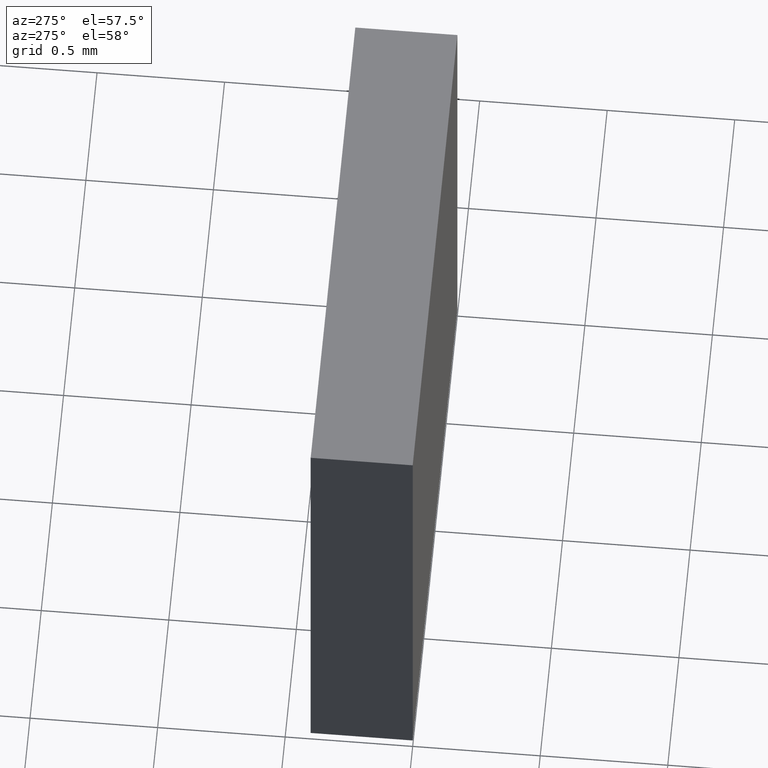
[diagram: clean part render]
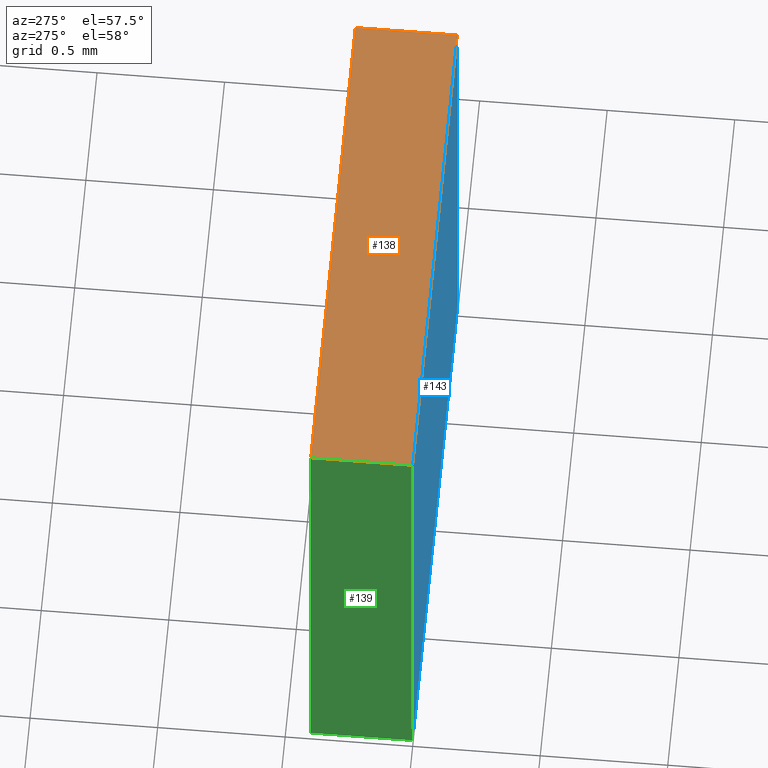
[diagram: same view with three faces highlighted in distinct colors, each labeled with its STEP entity id]
A machine part, auxiliary view with three faces highlighted in distinct colors.
Their STEP definitions:

[orange] entity #138 — the highlighted planar face has unit normal (-0, 0, -1).
#2 = PLANE ( 'NONE',  #164 ) ;
#18 = CARTESIAN_POINT ( 'NONE',  ( -0.9999999999999995600, 0.4000000000000000200, 1.000000000000000200 ) ) ;
#20 = DIRECTION ( 'NONE',  ( -1.084202172485504800E-016, 0.0000000000000000000, -1.000000000000000000 ) ) ;
#21 = DIRECTION ( 'NONE',  ( -1.000000000000000000, 0.0000000000000000000, 1.084202172485504800E-016 ) ) ;
#65 = DIRECTION ( 'NONE',  ( -0.0000000000000000000, -1.000000000000000000, -0.0000000000000000000 ) ) ;
#75 = CARTESIAN_POINT ( 'NONE',  ( 1.000000000000000000, 0.4000000000000000200, 1.000000000000000000 ) ) ;
#76 = CARTESIAN_POINT ( 'NONE',  ( -0.9999999999999995600, 0.0000000000000000000, 1.000000000000000200 ) ) ;
#80 = CARTESIAN_POINT ( 'NONE',  ( -0.9999999999999995600, 0.4000000000000000200, 1.000000000000000200 ) ) ;
#82 = DIRECTION ( 'NONE',  ( 1.000000000000000000, 0.0000000000000000000, -1.084202172485504700E-016 ) ) ;
#83 = DIRECTION ( 'NONE',  ( 1.000000000000000000, 0.0000000000000000000, -1.084202172485504700E-016 ) ) ;
#88 = CARTESIAN_POINT ( 'NONE',  ( -0.9999999999999995600, 0.4000000000000000200, 1.000000000000000200 ) ) ;
#89 = DIRECTION ( 'NONE',  ( -0.0000000000000000000, -1.000000000000000000, -0.0000000000000000000 ) ) ;
#103 = CARTESIAN_POINT ( 'NONE',  ( -0.9999999999999995600, 0.4000000000000000200, 1.000000000000000200 ) ) ;
#104 = CARTESIAN_POINT ( 'NONE',  ( -0.9999999999999995600, 0.0000000000000000000, 1.000000000000000200 ) ) ;
#105 = CARTESIAN_POINT ( 'NONE',  ( 1.000000000000000000, 0.4000000000000000200, 1.000000000000000000 ) ) ;
#106 = CARTESIAN_POINT ( 'NONE',  ( 1.000000000000000000, 0.0000000000000000000, 1.000000000000000000 ) ) ;
#138 = ADVANCED_FACE ( 'NONE', ( #231 ), #2, .F. ) ;
#146 = EDGE_CURVE ( 'NONE', #264, #278, #217, .T. ) ;
#147 = EDGE_CURVE ( 'NONE', #256, #264, #221, .T. ) ;
#148 = EDGE_CURVE ( 'NONE', #279, #278, #219, .T. ) ;
#151 = EDGE_CURVE ( 'NONE', #256, #279, #228, .T. ) ;
#164 = AXIS2_PLACEMENT_3D ( 'NONE', #18, #20, #21 ) ;
#198 = VECTOR ( 'NONE', #89, 1000.000000000000000 ) ;
#217 = LINE ( 'NONE', #75, #222 ) ;
#219 = LINE ( 'NONE', #76, #226 ) ;
#221 = LINE ( 'NONE', #80, #224 ) ;
#222 = VECTOR ( 'NONE', #65, 1000.000000000000000 ) ;
#224 = VECTOR ( 'NONE', #82, 1000.000000000000000 ) ;
#226 = VECTOR ( 'NONE', #83, 1000.000000000000000 ) ;
#228 = LINE ( 'NONE', #88, #198 ) ;
#231 = FACE_OUTER_BOUND ( 'NONE', #251, .T. ) ;
#251 = EDGE_LOOP ( 'NONE', ( #283, #284, #275, #265 ) ) ;
#256 = VERTEX_POINT ( 'NONE', #103 ) ;
#264 = VERTEX_POINT ( 'NONE', #105 ) ;
#265 = ORIENTED_EDGE ( 'NONE', *, *, #151, .T. ) ;
#275 = ORIENTED_EDGE ( 'NONE', *, *, #147, .F. ) ;
#278 = VERTEX_POINT ( 'NONE', #106 ) ;
#279 = VERTEX_POINT ( 'NONE', #104 ) ;
#283 = ORIENTED_EDGE ( 'NONE', *, *, #148, .T. ) ;
#284 = ORIENTED_EDGE ( 'NONE', *, *, #146, .F. ) ;

[blue] entity #143 — the highlighted planar face has unit normal (-0, 1, 0).
#54 = PLANE ( 'NONE',  #189 ) ;
#72 = CARTESIAN_POINT ( 'NONE',  ( 0.0000000000000000000, 0.0000000000000000000, 0.0000000000000000000 ) ) ;
#73 = DIRECTION ( 'NONE',  ( -0.0000000000000000000, 1.000000000000000000, 0.0000000000000000000 ) ) ;
#74 = DIRECTION ( 'NONE',  ( 0.0000000000000000000, -0.0000000000000000000, 1.000000000000000000 ) ) ;
#76 = CARTESIAN_POINT ( 'NONE',  ( -0.9999999999999995600, 0.0000000000000000000, 1.000000000000000200 ) ) ;
#78 = CARTESIAN_POINT ( 'NONE',  ( 0.9999999999999997800, 0.0000000000000000000, -1.000000000000000000 ) ) ;
#79 = DIRECTION ( 'NONE',  ( -1.084202172485504400E-016, -0.0000000000000000000, -1.000000000000000000 ) ) ;
#81 = CARTESIAN_POINT ( 'NONE',  ( -1.000000000000000200, 0.0000000000000000000, -0.9999999999999997800 ) ) ;
#83 = DIRECTION ( 'NONE',  ( 1.000000000000000000, 0.0000000000000000000, -1.084202172485504700E-016 ) ) ;
#87 = DIRECTION ( 'NONE',  ( 3.252606517456513300E-016, 0.0000000000000000000, 1.000000000000000000 ) ) ;
#94 = CARTESIAN_POINT ( 'NONE',  ( -1.000000000000000200, 0.0000000000000000000, -0.9999999999999997800 ) ) ;
#95 = CARTESIAN_POINT ( 'NONE',  ( -1.000000000000000200, 0.0000000000000000000, -0.9999999999999997800 ) ) ;
#96 = DIRECTION ( 'NONE',  ( -1.000000000000000000, -0.0000000000000000000, 1.084202172485504400E-016 ) ) ;
#102 = CARTESIAN_POINT ( 'NONE',  ( 0.9999999999999997800, 0.0000000000000000000, -1.000000000000000000 ) ) ;
#104 = CARTESIAN_POINT ( 'NONE',  ( -0.9999999999999995600, 0.0000000000000000000, 1.000000000000000200 ) ) ;
#106 = CARTESIAN_POINT ( 'NONE',  ( 1.000000000000000000, 0.0000000000000000000, 1.000000000000000000 ) ) ;
#143 = ADVANCED_FACE ( 'NONE', ( #213 ), #54, .F. ) ;
#145 = EDGE_CURVE ( 'NONE', #278, #255, #220, .T. ) ;
#148 = EDGE_CURVE ( 'NONE', #279, #278, #219, .T. ) ;
#150 = EDGE_CURVE ( 'NONE', #252, #279, #225, .T. ) ;
#154 = EDGE_CURVE ( 'NONE', #255, #252, #202, .T. ) ;
#189 = AXIS2_PLACEMENT_3D ( 'NONE', #72, #73, #74 ) ;
#202 = LINE ( 'NONE', #94, #204 ) ;
#204 = VECTOR ( 'NONE', #96, 1000.000000000000000 ) ;
#213 = FACE_OUTER_BOUND ( 'NONE', #263, .T. ) ;
#218 = VECTOR ( 'NONE', #79, 1000.000000000000000 ) ;
#219 = LINE ( 'NONE', #76, #226 ) ;
#220 = LINE ( 'NONE', #78, #218 ) ;
#225 = LINE ( 'NONE', #81, #229 ) ;
#226 = VECTOR ( 'NONE', #83, 1000.000000000000000 ) ;
#229 = VECTOR ( 'NONE', #87, 1000.000000000000000 ) ;
#252 = VERTEX_POINT ( 'NONE', #95 ) ;
#255 = VERTEX_POINT ( 'NONE', #102 ) ;
#263 = EDGE_LOOP ( 'NONE', ( #273, #272, #270, #271 ) ) ;
#270 = ORIENTED_EDGE ( 'NONE', *, *, #145, .F. ) ;
#271 = ORIENTED_EDGE ( 'NONE', *, *, #148, .F. ) ;
#272 = ORIENTED_EDGE ( 'NONE', *, *, #154, .F. ) ;
#273 = ORIENTED_EDGE ( 'NONE', *, *, #150, .F. ) ;
#278 = VERTEX_POINT ( 'NONE', #106 ) ;
#279 = VERTEX_POINT ( 'NONE', #104 ) ;

[green] entity #139 — the highlighted planar face has unit normal (1, 0, -0).
#17 = PLANE ( 'NONE',  #169 ) ;
#29 = CARTESIAN_POINT ( 'NONE',  ( -1.000000000000000200, 0.4000000000000000200, -0.9999999999999997800 ) ) ;
#30 = DIRECTION ( 'NONE',  ( 1.000000000000000000, 0.0000000000000000000, -3.252606517456513300E-016 ) ) ;
#31 = DIRECTION ( 'NONE',  ( -3.252606517456513300E-016, 0.0000000000000000000, -1.000000000000000000 ) ) ;
#77 = CARTESIAN_POINT ( 'NONE',  ( -1.000000000000000200, 0.4000000000000000200, -0.9999999999999997800 ) ) ;
#81 = CARTESIAN_POINT ( 'NONE',  ( -1.000000000000000200, 0.0000000000000000000, -0.9999999999999997800 ) ) ;
#85 = DIRECTION ( 'NONE',  ( -0.0000000000000000000, -1.000000000000000000, -0.0000000000000000000 ) ) ;
#87 = DIRECTION ( 'NONE',  ( 3.252606517456513300E-016, 0.0000000000000000000, 1.000000000000000000 ) ) ;
#88 = CARTESIAN_POINT ( 'NONE',  ( -0.9999999999999995600, 0.4000000000000000200, 1.000000000000000200 ) ) ;
#89 = DIRECTION ( 'NONE',  ( -0.0000000000000000000, -1.000000000000000000, -0.0000000000000000000 ) ) ;
#90 = CARTESIAN_POINT ( 'NONE',  ( -1.000000000000000200, 0.4000000000000000200, -0.9999999999999997800 ) ) ;
#91 = DIRECTION ( 'NONE',  ( 3.252606517456513300E-016, 0.0000000000000000000, 1.000000000000000000 ) ) ;
#95 = CARTESIAN_POINT ( 'NONE',  ( -1.000000000000000200, 0.0000000000000000000, -0.9999999999999997800 ) ) ;
#101 = CARTESIAN_POINT ( 'NONE',  ( -1.000000000000000200, 0.4000000000000000200, -0.9999999999999997800 ) ) ;
#103 = CARTESIAN_POINT ( 'NONE',  ( -0.9999999999999995600, 0.4000000000000000200, 1.000000000000000200 ) ) ;
#104 = CARTESIAN_POINT ( 'NONE',  ( -0.9999999999999995600, 0.0000000000000000000, 1.000000000000000200 ) ) ;
#139 = ADVANCED_FACE ( 'NONE', ( #235 ), #17, .F. ) ;
#149 = EDGE_CURVE ( 'NONE', #254, #252, #223, .T. ) ;
#150 = EDGE_CURVE ( 'NONE', #252, #279, #225, .T. ) ;
#151 = EDGE_CURVE ( 'NONE', #256, #279, #228, .T. ) ;
#152 = EDGE_CURVE ( 'NONE', #254, #256, #200, .T. ) ;
#169 = AXIS2_PLACEMENT_3D ( 'NONE', #29, #30, #31 ) ;
#198 = VECTOR ( 'NONE', #89, 1000.000000000000000 ) ;
#200 = LINE ( 'NONE', #90, #201 ) ;
#201 = VECTOR ( 'NONE', #91, 1000.000000000000000 ) ;
#223 = LINE ( 'NONE', #77, #227 ) ;
#225 = LINE ( 'NONE', #81, #229 ) ;
#227 = VECTOR ( 'NONE', #85, 1000.000000000000000 ) ;
#228 = LINE ( 'NONE', #88, #198 ) ;
#229 = VECTOR ( 'NONE', #87, 1000.000000000000000 ) ;
#235 = FACE_OUTER_BOUND ( 'NONE', #258, .T. ) ;
#252 = VERTEX_POINT ( 'NONE', #95 ) ;
#254 = VERTEX_POINT ( 'NONE', #101 ) ;
#256 = VERTEX_POINT ( 'NONE', #103 ) ;
#258 = EDGE_LOOP ( 'NONE', ( #282, #280, #286, #287 ) ) ;
#279 = VERTEX_POINT ( 'NONE', #104 ) ;
#280 = ORIENTED_EDGE ( 'NONE', *, *, #151, .F. ) ;
#282 = ORIENTED_EDGE ( 'NONE', *, *, #150, .T. ) ;
#286 = ORIENTED_EDGE ( 'NONE', *, *, #152, .F. ) ;
#287 = ORIENTED_EDGE ( 'NONE', *, *, #149, .T. ) ;